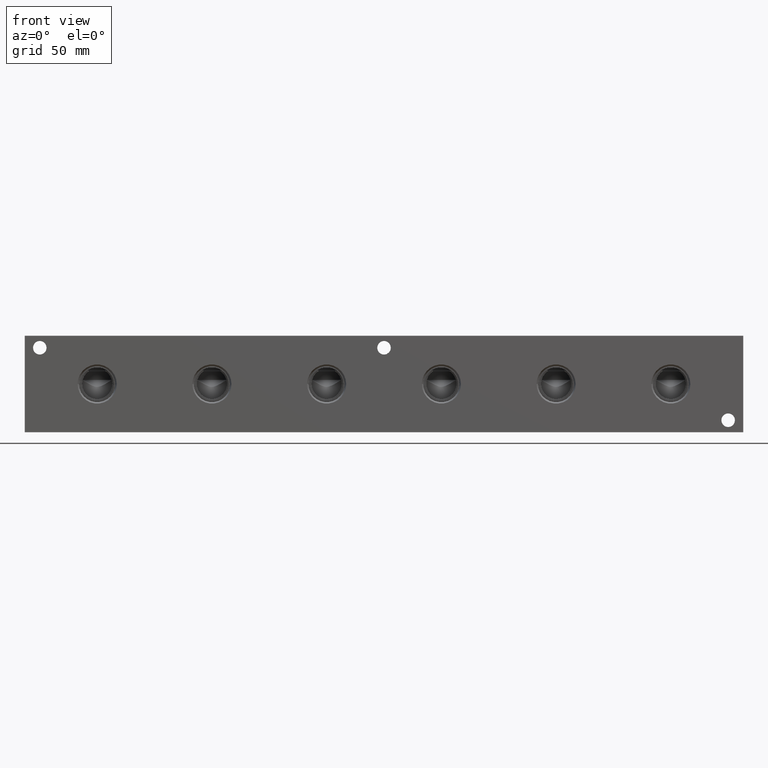
[diagram: clean part render]
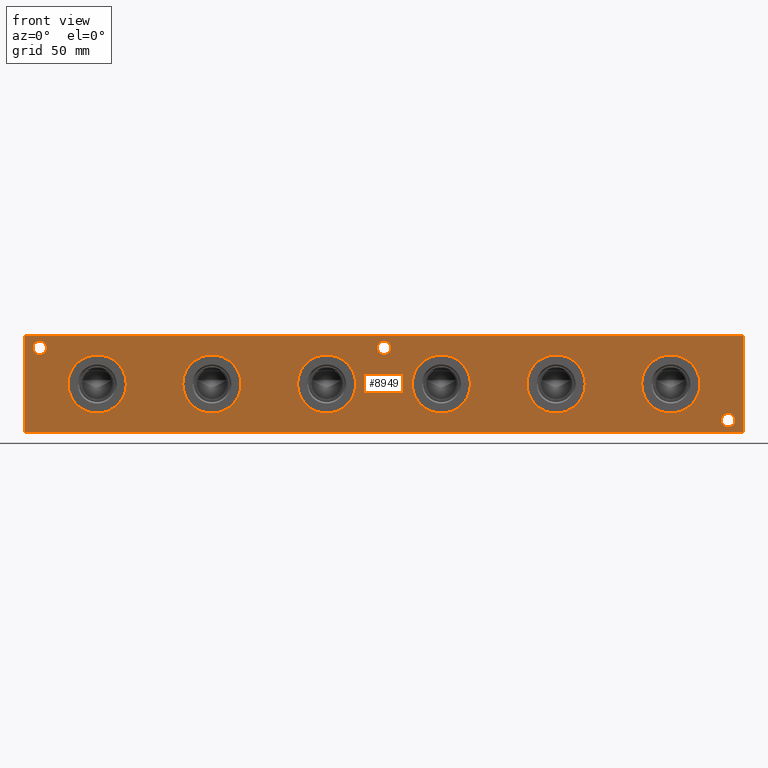
[diagram: same view with one face highlighted and labeled with its STEP entity id]
A machine part, front view. The second image highlights one B-rep face of the part: STEP entity #8949.
In plain terms, the highlighted planar face has unit normal (0, -1, 0).
Its self-contained STEP definition (entity closure, byte-faithful):
#182=CIRCLE('',#9173,15.3162);
#183=CIRCLE('',#9174,15.3162);
#193=CIRCLE('',#9189,15.3162);
#194=CIRCLE('',#9190,15.3162);
#204=CIRCLE('',#9205,15.3162);
#205=CIRCLE('',#9206,15.3162);
#215=CIRCLE('',#9221,15.3162);
#216=CIRCLE('',#9222,15.3162);
#226=CIRCLE('',#9237,15.3162);
#227=CIRCLE('',#9238,15.3162);
#304=CIRCLE('',#9386,15.3162);
#305=CIRCLE('',#9387,15.3162);
#386=CIRCLE('',#9527,3.5687);
#387=CIRCLE('',#9528,3.5687);
#389=CIRCLE('',#9536,3.5687);
#390=CIRCLE('',#9537,3.5687);
#392=CIRCLE('',#9545,3.5687);
#393=CIRCLE('',#9546,3.5687);
#464=FACE_BOUND('',#1702,.T.);
#465=FACE_BOUND('',#1703,.T.);
#466=FACE_BOUND('',#1704,.T.);
#467=FACE_BOUND('',#1705,.T.);
#468=FACE_BOUND('',#1706,.T.);
#469=FACE_BOUND('',#1707,.T.);
#470=FACE_BOUND('',#1708,.T.);
#471=FACE_BOUND('',#1709,.T.);
#472=FACE_BOUND('',#1710,.T.);
#691=PLANE('',#9565);
#1163=FACE_OUTER_BOUND('',#1701,.T.);
#1701=EDGE_LOOP('',(#8002,#8003,#8004,#8005));
#1702=EDGE_LOOP('',(#8006,#8007));
#1703=EDGE_LOOP('',(#8008,#8009));
#1704=EDGE_LOOP('',(#8010,#8011));
#1705=EDGE_LOOP('',(#8012,#8013));
#1706=EDGE_LOOP('',(#8014,#8015));
#1707=EDGE_LOOP('',(#8016,#8017));
#1708=EDGE_LOOP('',(#8018,#8019));
#1709=EDGE_LOOP('',(#8020,#8021));
#1710=EDGE_LOOP('',(#8022,#8023));
#1947=LINE('',#14096,#2651);
#2413=LINE('',#15981,#3117);
#2418=LINE('',#15990,#3122);
#2419=LINE('',#15992,#3123);
#2651=VECTOR('',#9893,10.);
#3117=VECTOR('',#11461,10.);
#3122=VECTOR('',#11470,10.);
#3123=VECTOR('',#11473,10.);
#3738=VERTEX_POINT('',#14094);
#3739=VERTEX_POINT('',#14095);
#4022=VERTEX_POINT('',#15048);
#4023=VERTEX_POINT('',#15049);
#4033=VERTEX_POINT('',#15079);
#4034=VERTEX_POINT('',#15080);
#4044=VERTEX_POINT('',#15110);
#4045=VERTEX_POINT('',#15111);
#4055=VERTEX_POINT('',#15141);
#4056=VERTEX_POINT('',#15142);
#4066=VERTEX_POINT('',#15172);
#4067=VERTEX_POINT('',#15173);
#4156=VERTEX_POINT('',#15661);
#4157=VERTEX_POINT('',#15662);
#4232=VERTEX_POINT('',#15912);
#4233=VERTEX_POINT('',#15913);
#4237=VERTEX_POINT('',#15928);
#4238=VERTEX_POINT('',#15929);
#4242=VERTEX_POINT('',#15944);
#4243=VERTEX_POINT('',#15945);
#4251=VERTEX_POINT('',#15979);
#4253=VERTEX_POINT('',#15988);
#4737=EDGE_CURVE('',#3738,#3739,#1947,.T.);
#5152=EDGE_CURVE('',#4022,#4023,#182,.T.);
#5153=EDGE_CURVE('',#4023,#4022,#183,.T.);
#5167=EDGE_CURVE('',#4033,#4034,#193,.T.);
#5168=EDGE_CURVE('',#4034,#4033,#194,.T.);
#5182=EDGE_CURVE('',#4044,#4045,#204,.T.);
#5183=EDGE_CURVE('',#4045,#4044,#205,.T.);
#5197=EDGE_CURVE('',#4055,#4056,#215,.T.);
#5198=EDGE_CURVE('',#4056,#4055,#216,.T.);
#5212=EDGE_CURVE('',#4066,#4067,#226,.T.);
#5213=EDGE_CURVE('',#4067,#4066,#227,.T.);
#5354=EDGE_CURVE('',#4156,#4157,#304,.T.);
#5355=EDGE_CURVE('',#4157,#4156,#305,.T.);
#5470=EDGE_CURVE('',#4232,#4233,#386,.T.);
#5471=EDGE_CURVE('',#4233,#4232,#387,.T.);
#5479=EDGE_CURVE('',#4237,#4238,#389,.T.);
#5480=EDGE_CURVE('',#4238,#4237,#390,.T.);
#5488=EDGE_CURVE('',#4242,#4243,#392,.T.);
#5489=EDGE_CURVE('',#4243,#4242,#393,.T.);
#5507=EDGE_CURVE('',#4251,#3738,#2413,.T.);
#5512=EDGE_CURVE('',#4253,#3739,#2418,.T.);
#5513=EDGE_CURVE('',#4251,#4253,#2419,.T.);
#8002=ORIENTED_EDGE('',*,*,#5513,.T.);
#8003=ORIENTED_EDGE('',*,*,#5512,.T.);
#8004=ORIENTED_EDGE('',*,*,#4737,.F.);
#8005=ORIENTED_EDGE('',*,*,#5507,.F.);
#8006=ORIENTED_EDGE('',*,*,#5152,.T.);
#8007=ORIENTED_EDGE('',*,*,#5153,.T.);
#8008=ORIENTED_EDGE('',*,*,#5167,.T.);
#8009=ORIENTED_EDGE('',*,*,#5168,.T.);
#8010=ORIENTED_EDGE('',*,*,#5182,.T.);
#8011=ORIENTED_EDGE('',*,*,#5183,.T.);
#8012=ORIENTED_EDGE('',*,*,#5197,.T.);
#8013=ORIENTED_EDGE('',*,*,#5198,.T.);
#8014=ORIENTED_EDGE('',*,*,#5212,.T.);
#8015=ORIENTED_EDGE('',*,*,#5213,.T.);
#8016=ORIENTED_EDGE('',*,*,#5354,.T.);
#8017=ORIENTED_EDGE('',*,*,#5355,.T.);
#8018=ORIENTED_EDGE('',*,*,#5470,.T.);
#8019=ORIENTED_EDGE('',*,*,#5471,.T.);
#8020=ORIENTED_EDGE('',*,*,#5479,.T.);
#8021=ORIENTED_EDGE('',*,*,#5480,.T.);
#8022=ORIENTED_EDGE('',*,*,#5488,.T.);
#8023=ORIENTED_EDGE('',*,*,#5489,.T.);
#8949=ADVANCED_FACE('',(#1163,#464,#465,#466,#467,#468,#469,#470,#471,#472),
#691,.T.);
#9173=AXIS2_PLACEMENT_3D('',#15050,#10596,#10597);
#9174=AXIS2_PLACEMENT_3D('',#15051,#10598,#10599);
#9189=AXIS2_PLACEMENT_3D('',#15081,#10632,#10633);
#9190=AXIS2_PLACEMENT_3D('',#15082,#10634,#10635);
#9205=AXIS2_PLACEMENT_3D('',#15112,#10668,#10669);
#9206=AXIS2_PLACEMENT_3D('',#15113,#10670,#10671);
#9221=AXIS2_PLACEMENT_3D('',#15143,#10704,#10705);
#9222=AXIS2_PLACEMENT_3D('',#15144,#10706,#10707);
#9237=AXIS2_PLACEMENT_3D('',#15174,#10740,#10741);
#9238=AXIS2_PLACEMENT_3D('',#15175,#10742,#10743);
#9386=AXIS2_PLACEMENT_3D('',#15663,#11060,#11061);
#9387=AXIS2_PLACEMENT_3D('',#15664,#11062,#11063);
#9527=AXIS2_PLACEMENT_3D('',#15914,#11376,#11377);
#9528=AXIS2_PLACEMENT_3D('',#15915,#11378,#11379);
#9536=AXIS2_PLACEMENT_3D('',#15930,#11396,#11397);
#9537=AXIS2_PLACEMENT_3D('',#15931,#11398,#11399);
#9545=AXIS2_PLACEMENT_3D('',#15946,#11416,#11417);
#9546=AXIS2_PLACEMENT_3D('',#15947,#11418,#11419);
#9565=AXIS2_PLACEMENT_3D('',#15991,#11471,#11472);
#9893=DIRECTION('',(1.,0.,0.));
#10596=DIRECTION('center_axis',(0.,1.,0.));
#10597=DIRECTION('ref_axis',(1.,0.,0.));
#10598=DIRECTION('center_axis',(0.,1.,0.));
#10599=DIRECTION('ref_axis',(1.,0.,0.));
#10632=DIRECTION('center_axis',(0.,1.,0.));
#10633=DIRECTION('ref_axis',(1.,0.,0.));
#10634=DIRECTION('center_axis',(0.,1.,0.));
#10635=DIRECTION('ref_axis',(1.,0.,0.));
#10668=DIRECTION('center_axis',(0.,1.,0.));
#10669=DIRECTION('ref_axis',(1.,0.,0.));
#10670=DIRECTION('center_axis',(0.,1.,0.));
#10671=DIRECTION('ref_axis',(1.,0.,0.));
#10704=DIRECTION('center_axis',(0.,1.,0.));
#10705=DIRECTION('ref_axis',(1.,0.,0.));
#10706=DIRECTION('center_axis',(0.,1.,0.));
#10707=DIRECTION('ref_axis',(1.,0.,0.));
#10740=DIRECTION('center_axis',(0.,1.,0.));
#10741=DIRECTION('ref_axis',(1.,0.,0.));
#10742=DIRECTION('center_axis',(0.,1.,0.));
#10743=DIRECTION('ref_axis',(1.,0.,0.));
#11060=DIRECTION('center_axis',(0.,1.,0.));
#11061=DIRECTION('ref_axis',(1.,0.,0.));
#11062=DIRECTION('center_axis',(0.,1.,0.));
#11063=DIRECTION('ref_axis',(1.,0.,0.));
#11376=DIRECTION('center_axis',(0.,1.,0.));
#11377=DIRECTION('ref_axis',(1.,0.,0.));
#11378=DIRECTION('center_axis',(0.,1.,0.));
#11379=DIRECTION('ref_axis',(1.,0.,0.));
#11396=DIRECTION('center_axis',(0.,1.,0.));
#11397=DIRECTION('ref_axis',(1.,0.,0.));
#11398=DIRECTION('center_axis',(0.,1.,0.));
#11399=DIRECTION('ref_axis',(1.,0.,0.));
#11416=DIRECTION('center_axis',(0.,1.,0.));
#11417=DIRECTION('ref_axis',(1.,0.,0.));
#11418=DIRECTION('center_axis',(0.,1.,0.));
#11419=DIRECTION('ref_axis',(1.,0.,0.));
#11461=DIRECTION('',(0.,0.,1.));
#11470=DIRECTION('',(0.,0.,1.));
#11471=DIRECTION('center_axis',(0.,-1.,0.));
#11472=DIRECTION('ref_axis',(1.,0.,0.));
#11473=DIRECTION('',(1.,0.,0.));
#14094=CARTESIAN_POINT('',(0.,0.,50.8));
#14095=CARTESIAN_POINT('',(377.825,0.,50.8));
#14096=CARTESIAN_POINT('',(0.,0.,50.8));
#15048=CARTESIAN_POINT('',(355.0412,0.,25.4));
#15049=CARTESIAN_POINT('',(324.4088,0.,25.4));
#15050=CARTESIAN_POINT('Origin',(339.725,0.,25.4));
#15051=CARTESIAN_POINT('Origin',(339.725,0.,25.4));
#15079=CARTESIAN_POINT('',(294.7162,0.,25.4));
#15080=CARTESIAN_POINT('',(264.0838,0.,25.4));
#15081=CARTESIAN_POINT('Origin',(279.4,0.,25.4));
#15082=CARTESIAN_POINT('Origin',(279.4,0.,25.4));
#15110=CARTESIAN_POINT('',(234.3912,0.,25.4));
#15111=CARTESIAN_POINT('',(203.7588,0.,25.4));
#15112=CARTESIAN_POINT('Origin',(219.075,0.,25.4));
#15113=CARTESIAN_POINT('Origin',(219.075,0.,25.4));
#15141=CARTESIAN_POINT('',(174.0662,0.,25.4));
#15142=CARTESIAN_POINT('',(143.4338,0.,25.4));
#15143=CARTESIAN_POINT('Origin',(158.75,0.,25.4));
#15144=CARTESIAN_POINT('Origin',(158.75,0.,25.4));
#15172=CARTESIAN_POINT('',(113.7412,0.,25.4));
#15173=CARTESIAN_POINT('',(83.1088,0.,25.4));
#15174=CARTESIAN_POINT('Origin',(98.425,0.,25.4));
#15175=CARTESIAN_POINT('Origin',(98.425,0.,25.4));
#15661=CARTESIAN_POINT('',(53.4162,0.,25.4));
#15662=CARTESIAN_POINT('',(22.7838,0.,25.4));
#15663=CARTESIAN_POINT('Origin',(38.1,0.,25.4));
#15664=CARTESIAN_POINT('Origin',(38.1,0.,25.4));
#15912=CARTESIAN_POINT('',(192.4939,0.,44.45));
#15913=CARTESIAN_POINT('',(185.3565,0.,44.45));
#15914=CARTESIAN_POINT('Origin',(188.9252,0.,44.45));
#15915=CARTESIAN_POINT('Origin',(188.9252,0.,44.45));
#15928=CARTESIAN_POINT('',(11.4935,0.,44.45));
#15929=CARTESIAN_POINT('',(4.3561,0.,44.45));
#15930=CARTESIAN_POINT('Origin',(7.9248,0.,44.45));
#15931=CARTESIAN_POINT('Origin',(7.9248,0.,44.45));
#15944=CARTESIAN_POINT('',(373.4435,0.,6.35));
#15945=CARTESIAN_POINT('',(366.3061,0.,6.35));
#15946=CARTESIAN_POINT('Origin',(369.8748,0.,6.35));
#15947=CARTESIAN_POINT('Origin',(369.8748,0.,6.35));
#15979=CARTESIAN_POINT('',(0.,0.,0.));
#15981=CARTESIAN_POINT('',(0.,0.,0.));
#15988=CARTESIAN_POINT('',(377.825,0.,0.));
#15990=CARTESIAN_POINT('',(377.825,0.,0.));
#15991=CARTESIAN_POINT('Origin',(0.,0.,0.));
#15992=CARTESIAN_POINT('',(0.,0.,0.));